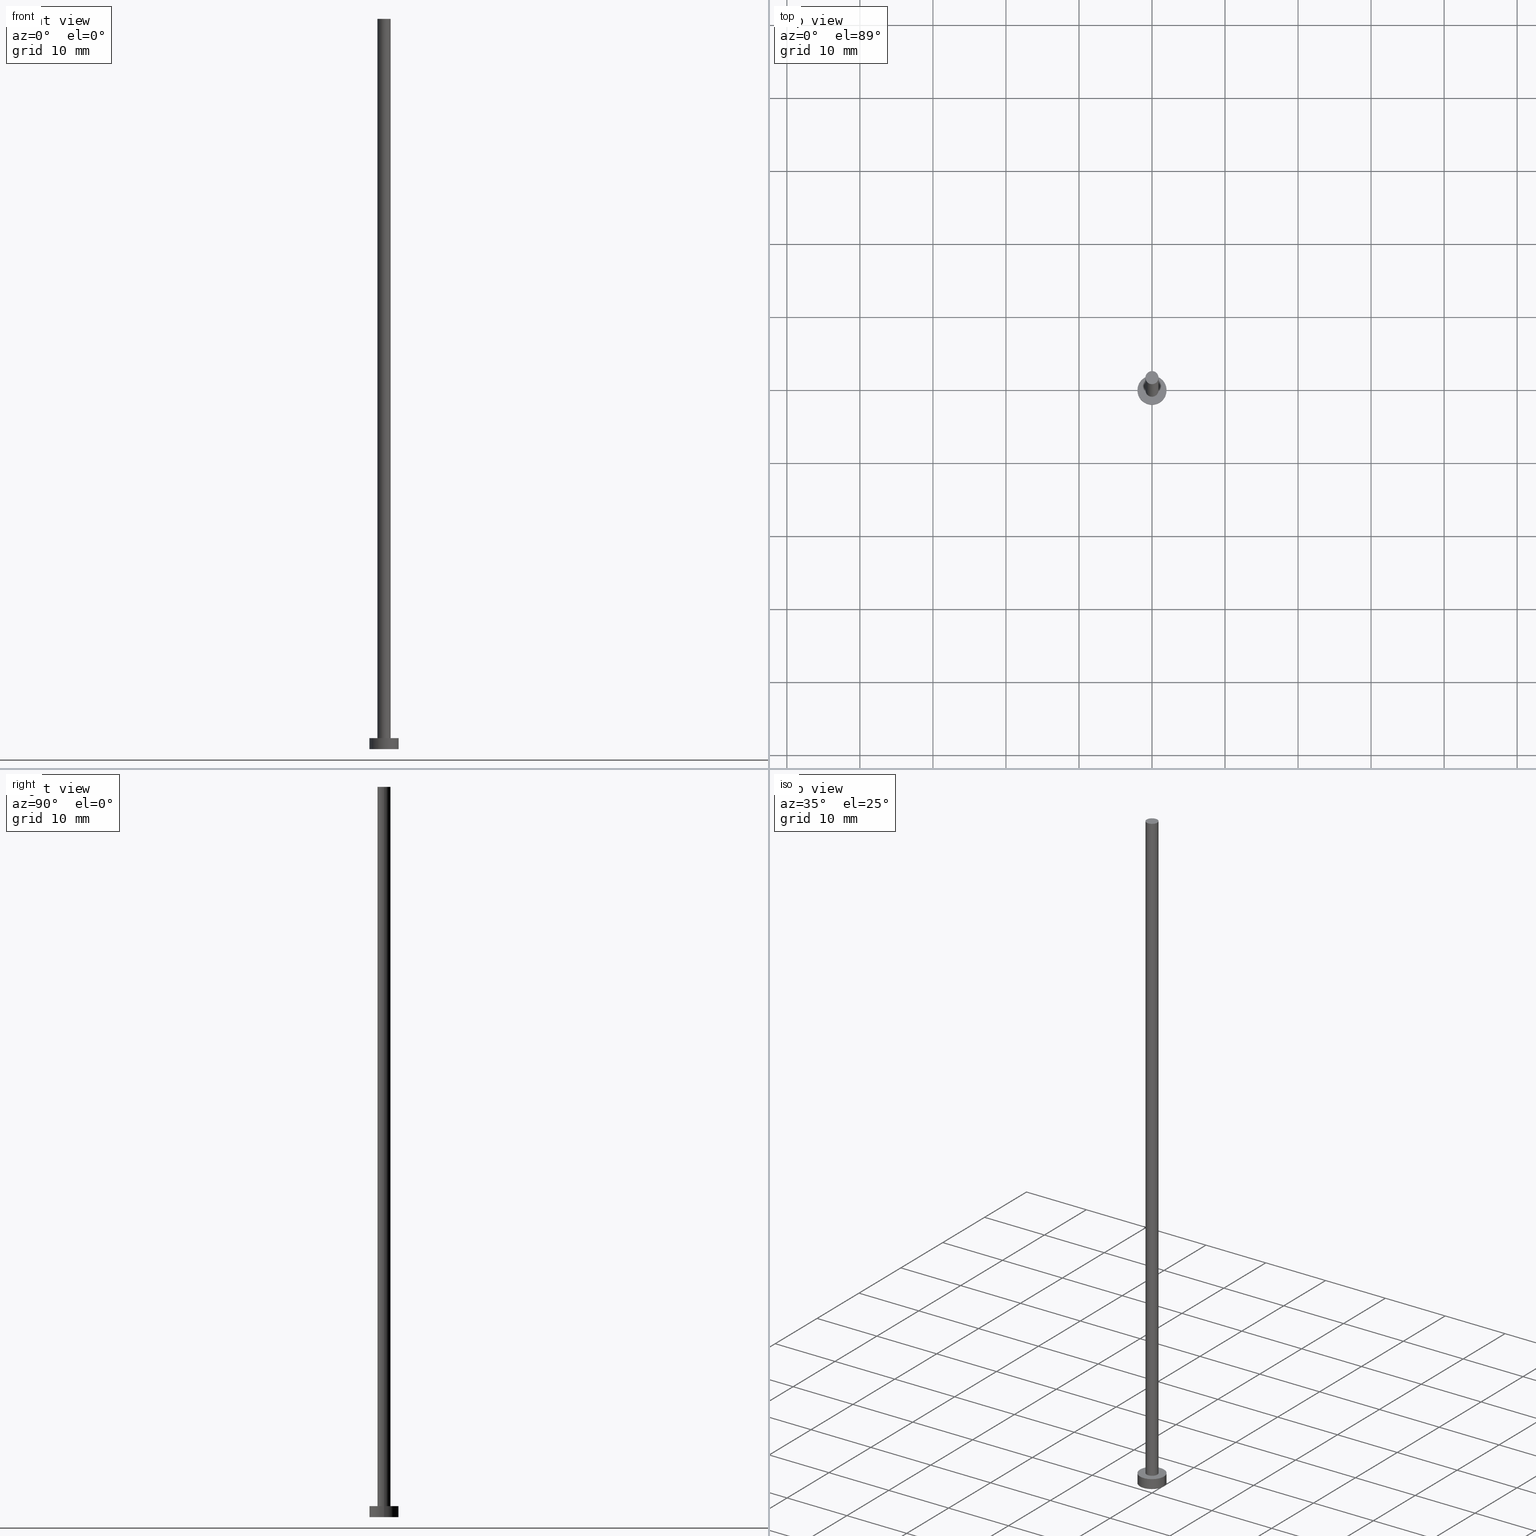
[diagram: canonical four-view strip — front | top / right | iso, engineering-drawing reading convention]
A machine part, canonical four-view strip (front | top / right | iso — engineering-drawing reading convention). The complete STEP part file that produces these views, byte-faithful:
ISO-10303-21;
HEADER;
FILE_DESCRIPTION (( 'STEP AP203' ),
    '1' );
FILE_NAME ('3289.STEP',
    '2023-02-12T12:54:53',
    ( '' ),
    ( '' ),
    'SwSTEP 2.0',
    'SolidWorks 2019',
    '' );
FILE_SCHEMA (( 'CONFIG_CONTROL_DESIGN' ));
ENDSEC;

DATA;
#1 = DIRECTION ( 'NONE',  ( 0.000000000000000000, 0.000000000000000000, 1.000000000000000000 ) ) ;
#2 = AXIS2_PLACEMENT_3D ( 'NONE', #97, #25, #206 ) ;
#3 = ORIENTED_EDGE ( 'NONE', *, *, #219, .F. ) ;
#4 = ORIENTED_EDGE ( 'NONE', *, *, #120, .F. ) ;
#5 = PERSON_AND_ORGANIZATION_ROLE ( 'creator' ) ;
#6 = EDGE_CURVE ( 'NONE', #112, #200, #64, .T. ) ;
#7 = CARTESIAN_POINT ( 'NONE',  ( 0.000000000000000000, 0.000000000000000000, 100.0000000000000000 ) ) ;
#8 = DIRECTION ( 'NONE',  ( 1.000000000000000000, 0.000000000000000000, 0.000000000000000000 ) ) ;
#9 = DIRECTION ( 'NONE',  ( 1.000000000000000000, 0.000000000000000000, 0.000000000000000000 ) ) ;
#10 = EDGE_CURVE ( 'NONE', #133, #164, #247, .T. ) ;
#11 = APPLICATION_CONTEXT ( 'configuration controlled 3d designs of mechanical parts and assemblies' ) ;
#12 = PERSON_AND_ORGANIZATION_ROLE ( 'creator' ) ;
#13 = ORIENTED_EDGE ( 'NONE', *, *, #16, .F. ) ;
#14 = PERSON_AND_ORGANIZATION ( #135, #84 ) ;
#15 = PERSON_AND_ORGANIZATION ( #135, #84 ) ;
#16 = EDGE_CURVE ( 'NONE', #65, #22, #225, .T. ) ;
#17 = DATE_AND_TIME ( #167, #99 ) ;
#18 = CYLINDRICAL_SURFACE ( 'NONE', #20, 2.000000000000000000 ) ;
#19 = CYLINDRICAL_SURFACE ( 'NONE', #34, 2.000000000000000000 ) ;
#20 = AXIS2_PLACEMENT_3D ( 'NONE', #217, #89, #139 ) ;
#21 = CARTESIAN_POINT ( 'NONE',  ( 0.000000000000000000, 0.000000000000000000, 100.0000000000000000 ) ) ;
#22 = VERTEX_POINT ( 'NONE', #26 ) ;
#23 = DIRECTION ( 'NONE',  ( 1.000000000000000000, 0.000000000000000000, -0.000000000000000000 ) ) ;
#24 = DIRECTION ( 'NONE',  ( 1.000000000000000000, 0.000000000000000000, 0.000000000000000000 ) ) ;
#25 = DIRECTION ( 'NONE',  ( -0.000000000000000000, -0.000000000000000000, -1.000000000000000000 ) ) ;
#26 = CARTESIAN_POINT ( 'NONE',  ( -2.000000000000000000, 0.000000000000000000, 1.500000000000000000 ) ) ;
#27 = FACE_OUTER_BOUND ( 'NONE', #123, .T. ) ;
#28 = CARTESIAN_POINT ( 'NONE',  ( 2.000000000000000000, 2.449293598294706414E-16, 1.500000000000000000 ) ) ;
#29 = EDGE_CURVE ( 'NONE', #22, #164, #95, .T. ) ;
#30 = PERSON_AND_ORGANIZATION ( #135, #84 ) ;
#31 = DIRECTION ( 'NONE',  ( -0.000000000000000000, -0.000000000000000000, -1.000000000000000000 ) ) ;
#32 = CARTESIAN_POINT ( 'NONE',  ( 0.9000000000000000222, 1.102182119232617788E-16, 100.0000000000000000 ) ) ;
#33 = CIRCLE ( 'NONE', #169, 0.9000000000000000222 ) ;
#34 = AXIS2_PLACEMENT_3D ( 'NONE', #90, #170, #109 ) ;
#35 = LOCAL_TIME ( 13, 54, 53.00000000000000000, #221 ) ;
#36 = LOCAL_TIME ( 13, 54, 53.00000000000000000, #155 ) ;
#37 = DIRECTION ( 'NONE',  ( 1.000000000000000000, 0.000000000000000000, 0.000000000000000000 ) ) ;
#38 = CARTESIAN_POINT ( 'NONE',  ( 0.000000000000000000, 0.000000000000000000, 1.500000000000000000 ) ) ;
#39 = APPLICATION_CONTEXT ( 'configuration controlled 3d designs of mechanical parts and assemblies' ) ;
#40 = ORIENTED_EDGE ( 'NONE', *, *, #124, .T. ) ;
#41 = CYLINDRICAL_SURFACE ( 'NONE', #2, 0.9000000000000000222 ) ;
#42 = PRODUCT_DEFINITION_SHAPE ( 'NONE', 'NONE',  #83 ) ;
#43 = CARTESIAN_POINT ( 'NONE',  ( 0.000000000000000000, 0.000000000000000000, 1.500000000000000000 ) ) ;
#44 = AXIS2_PLACEMENT_3D ( 'NONE', #79, #144, #248 ) ;
#45 = ORIENTED_EDGE ( 'NONE', *, *, #10, .T. ) ;
#46 = COORDINATED_UNIVERSAL_TIME_OFFSET ( 1, 0, .AHEAD. ) ;
#47 = FACE_OUTER_BOUND ( 'NONE', #180, .T. ) ;
#48 = DATE_AND_TIME ( #51, #35 ) ;
#49 = EDGE_LOOP ( 'NONE', ( #40, #77 ) ) ;
#50 = COORDINATED_UNIVERSAL_TIME_OFFSET ( 1, 0, .AHEAD. ) ;
#51 = CALENDAR_DATE ( 2023, 12, 2 ) ;
#52 = CARTESIAN_POINT ( 'NONE',  ( 2.000000000000000000, 2.449293598294706414E-16, 0.000000000000000000 ) ) ;
#53 = DATE_TIME_ROLE ( 'creation_date' ) ;
#54 = PRODUCT_DEFINITION_FORMATION_WITH_SPECIFIED_SOURCE ( 'LIBOVOLN�', '', #94, .NOT_KNOWN. ) ;
#55 = PLANE ( 'NONE',  #215 ) ;
#56 = EDGE_LOOP ( 'NONE', ( #230, #85, #176, #153 ) ) ;
#57 = ORIENTED_EDGE ( 'NONE', *, *, #74, .F. ) ;
#58 = CALENDAR_DATE ( 2023, 12, 2 ) ;
#59 = EDGE_LOOP ( 'NONE', ( #199, #81, #191, #76 ) ) ;
#60 = APPROVAL_ROLE ( '' ) ;
#61 = VERTEX_POINT ( 'NONE', #96 ) ;
#62 = PERSON_AND_ORGANIZATION ( #135, #84 ) ;
#63 = EDGE_CURVE ( 'NONE', #65, #133, #172, .T. ) ;
#64 = CIRCLE ( 'NONE', #121, 0.9000000000000000222 ) ;
#65 = VERTEX_POINT ( 'NONE', #28 ) ;
#66 = CALENDAR_DATE ( 2023, 12, 2 ) ;
#67 = DIRECTION ( 'NONE',  ( 1.000000000000000000, 0.000000000000000000, 0.000000000000000000 ) ) ;
#68 = DESIGN_CONTEXT ( 'detailed design', #39, 'design' ) ;
#69 = CYLINDRICAL_SURFACE ( 'NONE', #183, 0.9000000000000000222 ) ;
#70 = VECTOR ( 'NONE', #195, 1000.000000000000000 ) ;
#71 = CC_DESIGN_PERSON_AND_ORGANIZATION_ASSIGNMENT ( #30, #100, ( #94 ) ) ;
#72 = CARTESIAN_POINT ( 'NONE',  ( 0.000000000000000000, 0.000000000000000000, 1.500000000000000000 ) ) ;
#73 = CARTESIAN_POINT ( 'NONE',  ( 2.000000000000000000, 2.449293598294706414E-16, 1.500000000000000000 ) ) ;
#74 = EDGE_CURVE ( 'NONE', #200, #112, #33, .T. ) ;
#75 = ORIENTED_EDGE ( 'NONE', *, *, #232, .T. ) ;
#76 = ORIENTED_EDGE ( 'NONE', *, *, #232, .F. ) ;
#77 = ORIENTED_EDGE ( 'NONE', *, *, #16, .T. ) ;
#78 = CC_DESIGN_PERSON_AND_ORGANIZATION_ASSIGNMENT ( #246, #220, ( #54 ) ) ;
#79 = CARTESIAN_POINT ( 'NONE',  ( 0.000000000000000000, 0.000000000000000000, 100.0000000000000000 ) ) ;
#80 = AXIS2_PLACEMENT_3D ( 'NONE', #130, #213, #134 ) ;
#81 = ORIENTED_EDGE ( 'NONE', *, *, #92, .T. ) ;
#82 = PERSON_AND_ORGANIZATION_ROLE ( 'classification_officer' ) ;
#83 = PRODUCT_DEFINITION ( 'NEZN�M�', '', #54, #68 ) ;
#84 = ORGANIZATION ( 'NEUR�EN�', 'NEUR�EN�', '' ) ;
#85 = ORIENTED_EDGE ( 'NONE', *, *, #124, .F. ) ;
#86 = APPROVAL_STATUS ( 'not_yet_approved' ) ;
#87 = FACE_OUTER_BOUND ( 'NONE', #93, .T. ) ;
#88 = APPROVAL_ROLE ( '' ) ;
#89 = DIRECTION ( 'NONE',  ( -0.000000000000000000, -0.000000000000000000, -1.000000000000000000 ) ) ;
#90 = CARTESIAN_POINT ( 'NONE',  ( 0.000000000000000000, 0.000000000000000000, 1.500000000000000000 ) ) ;
#91 = DIRECTION ( 'NONE',  ( 1.000000000000000000, 0.000000000000000000, 0.000000000000000000 ) ) ;
#92 = EDGE_CURVE ( 'NONE', #142, #200, #122, .T. ) ;
#93 = EDGE_LOOP ( 'NONE', ( #13, #137, #45, #229 ) ) ;
#94 = PRODUCT ( '3289', '3289', '', ( #214 ) ) ;
#95 = LINE ( 'NONE', #129, #110 ) ;
#96 = CARTESIAN_POINT ( 'NONE',  ( -0.9000000000000000222, 0.000000000000000000, 100.0000000000000000 ) ) ;
#97 = CARTESIAN_POINT ( 'NONE',  ( 0.000000000000000000, 0.000000000000000000, 100.0000000000000000 ) ) ;
#98 = ADVANCED_BREP_SHAPE_REPRESENTATION ( '3289', ( #166, #103 ), #238 ) ;
#99 = LOCAL_TIME ( 13, 54, 53.00000000000000000, #159 ) ;
#100 = PERSON_AND_ORGANIZATION_ROLE ( 'design_owner' ) ;
#101 = APPROVAL ( #235, 'NEUR�EN�' ) ;
#102 = CARTESIAN_POINT ( 'NONE',  ( 0.000000000000000000, 0.000000000000000000, 0.000000000000000000 ) ) ;
#103 = AXIS2_PLACEMENT_3D ( 'NONE', #102, #177, #8 ) ;
#104 = APPROVAL_DATE_TIME ( #175, #101 ) ;
#105 = ADVANCED_FACE ( 'NONE', ( #87 ), #18, .T. ) ;
#106 = DIRECTION ( 'NONE',  ( -0.000000000000000000, -0.000000000000000000, -1.000000000000000000 ) ) ;
#107 = FACE_OUTER_BOUND ( 'NONE', #56, .T. ) ;
#108 = ADVANCED_FACE ( 'NONE', ( #168 ), #69, .T. ) ;
#109 = DIRECTION ( 'NONE',  ( -1.000000000000000000, 0.000000000000000000, 0.000000000000000000 ) ) ;
#110 = VECTOR ( 'NONE', #127, 1000.000000000000000 ) ;
#111 = APPROVAL_PERSON_ORGANIZATION ( #14, #143, #161 ) ;
#112 = VERTEX_POINT ( 'NONE', #226 ) ;
#113 = ADVANCED_FACE ( 'NONE', ( #115 ), #165, .F. ) ;
#114 = DIRECTION ( 'NONE',  ( 1.000000000000000000, 0.000000000000000000, -0.000000000000000000 ) ) ;
#115 = FACE_OUTER_BOUND ( 'NONE', #174, .T. ) ;
#116 = PERSON_AND_ORGANIZATION ( #135, #84 ) ;
#117 = CARTESIAN_POINT ( 'NONE',  ( 0.000000000000000000, 0.000000000000000000, 0.000000000000000000 ) ) ;
#118 = DATE_TIME_ROLE ( 'classification_date' ) ;
#119 = APPROVAL_DATE_TIME ( #17, #143 ) ;
#120 = EDGE_CURVE ( 'NONE', #164, #133, #196, .T. ) ;
#121 = AXIS2_PLACEMENT_3D ( 'NONE', #72, #237, #151 ) ;
#122 = LINE ( 'NONE', #32, #234 ) ;
#123 = EDGE_LOOP ( 'NONE', ( #160, #3, #75, #208 ) ) ;
#124 = EDGE_CURVE ( 'NONE', #22, #65, #231, .T. ) ;
#125 = LOCAL_TIME ( 13, 54, 53.00000000000000000, #50 ) ;
#126 = AXIS2_PLACEMENT_3D ( 'NONE', #43, #194, #24 ) ;
#127 = DIRECTION ( 'NONE',  ( -0.000000000000000000, -0.000000000000000000, -1.000000000000000000 ) ) ;
#128 = CARTESIAN_POINT ( 'NONE',  ( 0.000000000000000000, 0.000000000000000000, 100.0000000000000000 ) ) ;
#129 = CARTESIAN_POINT ( 'NONE',  ( -2.000000000000000000, 0.000000000000000000, 1.500000000000000000 ) ) ;
#130 = CARTESIAN_POINT ( 'NONE',  ( 0.000000000000000000, 0.000000000000000000, 0.000000000000000000 ) ) ;
#131 = ORIENTED_EDGE ( 'NONE', *, *, #6, .F. ) ;
#132 = ADVANCED_FACE ( 'NONE', ( #47 ), #223, .T. ) ;
#133 = VERTEX_POINT ( 'NONE', #52 ) ;
#134 = DIRECTION ( 'NONE',  ( 1.000000000000000000, 0.000000000000000000, 0.000000000000000000 ) ) ;
#135 = PERSON ( 'NEUR�EN�', 'NEUR�EN�', 'NEUR�EN�', ('NEUR�EN�'), ('NEUR�EN�'), ('NEUR�EN�') ) ;
#136 = CLOSED_SHELL ( 'NONE', ( #108, #105, #182, #212, #113, #158, #132 ) ) ;
#137 = ORIENTED_EDGE ( 'NONE', *, *, #63, .T. ) ;
#138 = PERSON_AND_ORGANIZATION ( #135, #84 ) ;
#139 = DIRECTION ( 'NONE',  ( -1.000000000000000000, 0.000000000000000000, 0.000000000000000000 ) ) ;
#140 = CALENDAR_DATE ( 2023, 12, 2 ) ;
#141 = CIRCLE ( 'NONE', #202, 0.9000000000000000222 ) ;
#142 = VERTEX_POINT ( 'NONE', #192 ) ;
#143 = APPROVAL ( #86, 'NEUR�EN�' ) ;
#144 = DIRECTION ( 'NONE',  ( 0.000000000000000000, 0.000000000000000000, 1.000000000000000000 ) ) ;
#145 = CARTESIAN_POINT ( 'NONE',  ( 0.000000000000000000, 0.000000000000000000, 1.500000000000000000 ) ) ;
#146 = DIRECTION ( 'NONE',  ( -1.000000000000000000, 0.000000000000000000, 0.000000000000000000 ) ) ;
#147 = SECURITY_CLASSIFICATION ( '', '', #243 ) ;
#148 = CARTESIAN_POINT ( 'NONE',  ( -2.000000000000000000, 0.000000000000000000, 0.000000000000000000 ) ) ;
#149 = PRODUCT_RELATED_PRODUCT_CATEGORY ( 'detail', '', ( #94 ) ) ;
#150 = DIRECTION ( 'NONE',  ( -0.000000000000000000, -0.000000000000000000, -1.000000000000000000 ) ) ;
#151 = DIRECTION ( 'NONE',  ( 1.000000000000000000, 0.000000000000000000, 0.000000000000000000 ) ) ;
#152 = AXIS2_PLACEMENT_3D ( 'NONE', #198, #242, #114 ) ;
#153 = ORIENTED_EDGE ( 'NONE', *, *, #120, .T. ) ;
#154 =( NAMED_UNIT ( * ) PLANE_ANGLE_UNIT ( ) SI_UNIT ( $, .RADIAN. ) );
#155 = COORDINATED_UNIVERSAL_TIME_OFFSET ( 1, 0, .AHEAD. ) ;
#156 = CARTESIAN_POINT ( 'NONE',  ( 0.000000000000000000, 0.000000000000000000, 1.500000000000000000 ) ) ;
#157 = DIRECTION ( 'NONE',  ( 0.000000000000000000, 0.000000000000000000, 1.000000000000000000 ) ) ;
#158 = ADVANCED_FACE ( 'NONE', ( #27 ), #41, .T. ) ;
#159 = COORDINATED_UNIVERSAL_TIME_OFFSET ( 1, 0, .AHEAD. ) ;
#160 = ORIENTED_EDGE ( 'NONE', *, *, #92, .F. ) ;
#161 = APPROVAL_ROLE ( '' ) ;
#162 = EDGE_CURVE ( 'NONE', #142, #61, #173, .T. ) ;
#163 = VECTOR ( 'NONE', #150, 1000.000000000000000 ) ;
#164 = VERTEX_POINT ( 'NONE', #148 ) ;
#165 = PLANE ( 'NONE',  #152 ) ;
#166 = MANIFOLD_SOLID_BREP ( 'P�idat vysunut�m3', #136 ) ;
#167 = CALENDAR_DATE ( 2023, 12, 2 ) ;
#168 = FACE_OUTER_BOUND ( 'NONE', #59, .T. ) ;
#169 = AXIS2_PLACEMENT_3D ( 'NONE', #145, #157, #224 ) ;
#170 = DIRECTION ( 'NONE',  ( -0.000000000000000000, -0.000000000000000000, -1.000000000000000000 ) ) ;
#171 = LINE ( 'NONE', #253, #70 ) ;
#172 = LINE ( 'NONE', #73, #163 ) ;
#173 = CIRCLE ( 'NONE', #181, 0.9000000000000000222 ) ;
#174 = EDGE_LOOP ( 'NONE', ( #4, #185 ) ) ;
#175 = DATE_AND_TIME ( #58, #36 ) ;
#176 = ORIENTED_EDGE ( 'NONE', *, *, #29, .T. ) ;
#177 = DIRECTION ( 'NONE',  ( 0.000000000000000000, 0.000000000000000000, 1.000000000000000000 ) ) ;
#178 = DIRECTION ( 'NONE',  ( 0.000000000000000000, 0.000000000000000000, 1.000000000000000000 ) ) ;
#179 = ORIENTED_EDGE ( 'NONE', *, *, #162, .T. ) ;
#180 = EDGE_LOOP ( 'NONE', ( #209, #179 ) ) ;
#181 = AXIS2_PLACEMENT_3D ( 'NONE', #128, #1, #37 ) ;
#182 = ADVANCED_FACE ( 'NONE', ( #107 ), #19, .T. ) ;
#183 = AXIS2_PLACEMENT_3D ( 'NONE', #7, #31, #146 ) ;
#184 = DATE_AND_TIME ( #66, #207 ) ;
#185 = ORIENTED_EDGE ( 'NONE', *, *, #10, .F. ) ;
#186 = UNCERTAINTY_MEASURE_WITH_UNIT (LENGTH_MEASURE( 1.000000000000000082E-05 ), #193, 'distance_accuracy_value', 'NONE');
#187 = AXIS2_PLACEMENT_3D ( 'NONE', #117, #178, #67 ) ;
#188 = DIRECTION ( 'NONE',  ( 0.000000000000000000, 0.000000000000000000, 1.000000000000000000 ) ) ;
#189 = FACE_BOUND ( 'NONE', #203, .T. ) ;
#190 = CC_DESIGN_DATE_AND_TIME_ASSIGNMENT ( #184, #53, ( #83 ) ) ;
#191 = ORIENTED_EDGE ( 'NONE', *, *, #74, .T. ) ;
#192 = CARTESIAN_POINT ( 'NONE',  ( 0.9000000000000000222, 1.102182119232617788E-16, 100.0000000000000000 ) ) ;
#193 =( LENGTH_UNIT ( ) NAMED_UNIT ( * ) SI_UNIT ( .MILLI., .METRE. ) );
#194 = DIRECTION ( 'NONE',  ( 0.000000000000000000, 0.000000000000000000, 1.000000000000000000 ) ) ;
#195 = DIRECTION ( 'NONE',  ( -0.000000000000000000, -0.000000000000000000, -1.000000000000000000 ) ) ;
#196 = CIRCLE ( 'NONE', #187, 2.000000000000000000 ) ;
#197 = CC_DESIGN_DATE_AND_TIME_ASSIGNMENT ( #218, #118, ( #147 ) ) ;
#198 = CARTESIAN_POINT ( 'NONE',  ( 0.000000000000000000, 0.000000000000000000, 0.000000000000000000 ) ) ;
#199 = ORIENTED_EDGE ( 'NONE', *, *, #162, .F. ) ;
#200 = VERTEX_POINT ( 'NONE', #252 ) ;
#201 = APPROVAL_STATUS ( 'not_yet_approved' ) ;
#202 = AXIS2_PLACEMENT_3D ( 'NONE', #21, #255, #91 ) ;
#203 = EDGE_LOOP ( 'NONE', ( #131, #57 ) ) ;
#204 = APPROVAL_DATE_TIME ( #48, #244 ) ;
#205 = SHAPE_DEFINITION_REPRESENTATION ( #42, #98 ) ;
#206 = DIRECTION ( 'NONE',  ( -1.000000000000000000, 0.000000000000000000, 0.000000000000000000 ) ) ;
#207 = LOCAL_TIME ( 13, 54, 53.00000000000000000, #46 ) ;
#208 = ORIENTED_EDGE ( 'NONE', *, *, #6, .T. ) ;
#209 = ORIENTED_EDGE ( 'NONE', *, *, #219, .T. ) ;
#210 = APPROVAL_PERSON_ORGANIZATION ( #116, #101, #60 ) ;
#211 = CC_DESIGN_APPROVAL ( #244, ( #147 ) ) ;
#212 = ADVANCED_FACE ( 'NONE', ( #189, #228 ), #55, .T. ) ;
#213 = DIRECTION ( 'NONE',  ( 0.000000000000000000, 0.000000000000000000, 1.000000000000000000 ) ) ;
#214 = MECHANICAL_CONTEXT ( 'NONE', #11, 'mechanical' ) ;
#215 = AXIS2_PLACEMENT_3D ( 'NONE', #38, #188, #23 ) ;
#216 = CC_DESIGN_PERSON_AND_ORGANIZATION_ASSIGNMENT ( #250, #12, ( #54 ) ) ;
#217 = CARTESIAN_POINT ( 'NONE',  ( 0.000000000000000000, 0.000000000000000000, 1.500000000000000000 ) ) ;
#218 = DATE_AND_TIME ( #140, #125 ) ;
#219 = EDGE_CURVE ( 'NONE', #61, #142, #141, .T. ) ;
#220 = PERSON_AND_ORGANIZATION_ROLE ( 'design_supplier' ) ;
#221 = COORDINATED_UNIVERSAL_TIME_OFFSET ( 1, 0, .AHEAD. ) ;
#222 = AXIS2_PLACEMENT_3D ( 'NONE', #156, #240, #9 ) ;
#223 = PLANE ( 'NONE',  #44 ) ;
#224 = DIRECTION ( 'NONE',  ( 1.000000000000000000, 0.000000000000000000, 0.000000000000000000 ) ) ;
#225 = CIRCLE ( 'NONE', #126, 2.000000000000000000 ) ;
#226 = CARTESIAN_POINT ( 'NONE',  ( -0.9000000000000000222, 0.000000000000000000, 1.500000000000000000 ) ) ;
#227 = CC_DESIGN_APPROVAL ( #101, ( #83 ) ) ;
#228 = FACE_OUTER_BOUND ( 'NONE', #49, .T. ) ;
#229 = ORIENTED_EDGE ( 'NONE', *, *, #29, .F. ) ;
#230 = ORIENTED_EDGE ( 'NONE', *, *, #63, .F. ) ;
#231 = CIRCLE ( 'NONE', #222, 2.000000000000000000 ) ;
#232 = EDGE_CURVE ( 'NONE', #61, #112, #171, .T. ) ;
#233 = APPLICATION_PROTOCOL_DEFINITION ( 'international standard', 'config_control_design', 1994, #11 ) ;
#234 = VECTOR ( 'NONE', #106, 1000.000000000000000 ) ;
#235 = APPROVAL_STATUS ( 'not_yet_approved' ) ;
#236 =( NAMED_UNIT ( * ) SI_UNIT ( $, .STERADIAN. ) SOLID_ANGLE_UNIT ( ) );
#237 = DIRECTION ( 'NONE',  ( 0.000000000000000000, 0.000000000000000000, 1.000000000000000000 ) ) ;
#238 =( GEOMETRIC_REPRESENTATION_CONTEXT ( 3 ) GLOBAL_UNCERTAINTY_ASSIGNED_CONTEXT ( ( #186 ) ) GLOBAL_UNIT_ASSIGNED_CONTEXT ( ( #193, #154, #236 ) ) REPRESENTATION_CONTEXT ( 'NONE', 'WORKASPACE' ) );
#239 = CC_DESIGN_PERSON_AND_ORGANIZATION_ASSIGNMENT ( #138, #5, ( #83 ) ) ;
#240 = DIRECTION ( 'NONE',  ( 0.000000000000000000, 0.000000000000000000, 1.000000000000000000 ) ) ;
#241 = APPLICATION_PROTOCOL_DEFINITION ( 'international standard', 'config_control_design', 1994, #39 ) ;
#242 = DIRECTION ( 'NONE',  ( 0.000000000000000000, 0.000000000000000000, 1.000000000000000000 ) ) ;
#243 = SECURITY_CLASSIFICATION_LEVEL ( 'unclassified' ) ;
#244 = APPROVAL ( #201, 'NEUR�EN�' ) ;
#245 = CC_DESIGN_APPROVAL ( #143, ( #54 ) ) ;
#246 = PERSON_AND_ORGANIZATION ( #135, #84 ) ;
#247 = CIRCLE ( 'NONE', #80, 2.000000000000000000 ) ;
#248 = DIRECTION ( 'NONE',  ( 1.000000000000000000, 0.000000000000000000, -0.000000000000000000 ) ) ;
#249 = CC_DESIGN_PERSON_AND_ORGANIZATION_ASSIGNMENT ( #62, #82, ( #147 ) ) ;
#250 = PERSON_AND_ORGANIZATION ( #135, #84 ) ;
#251 = CC_DESIGN_SECURITY_CLASSIFICATION ( #147, ( #54 ) ) ;
#252 = CARTESIAN_POINT ( 'NONE',  ( 0.9000000000000000222, 1.102182119232617788E-16, 1.500000000000000000 ) ) ;
#253 = CARTESIAN_POINT ( 'NONE',  ( -0.9000000000000000222, 0.000000000000000000, 100.0000000000000000 ) ) ;
#254 = APPROVAL_PERSON_ORGANIZATION ( #15, #244, #88 ) ;
#255 = DIRECTION ( 'NONE',  ( 0.000000000000000000, 0.000000000000000000, 1.000000000000000000 ) ) ;
ENDSEC;
END-ISO-10303-21;
